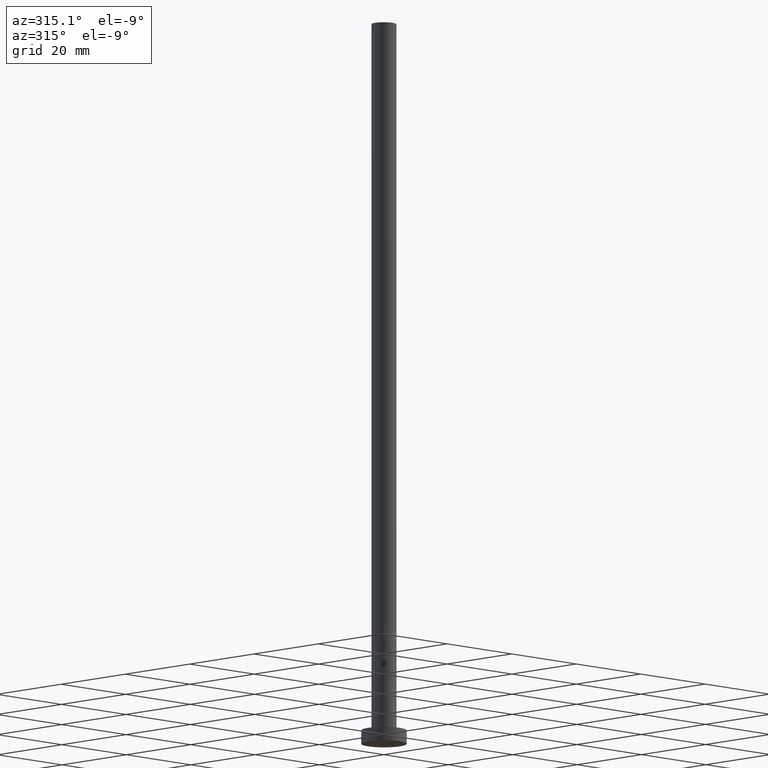
[diagram: clean part render]
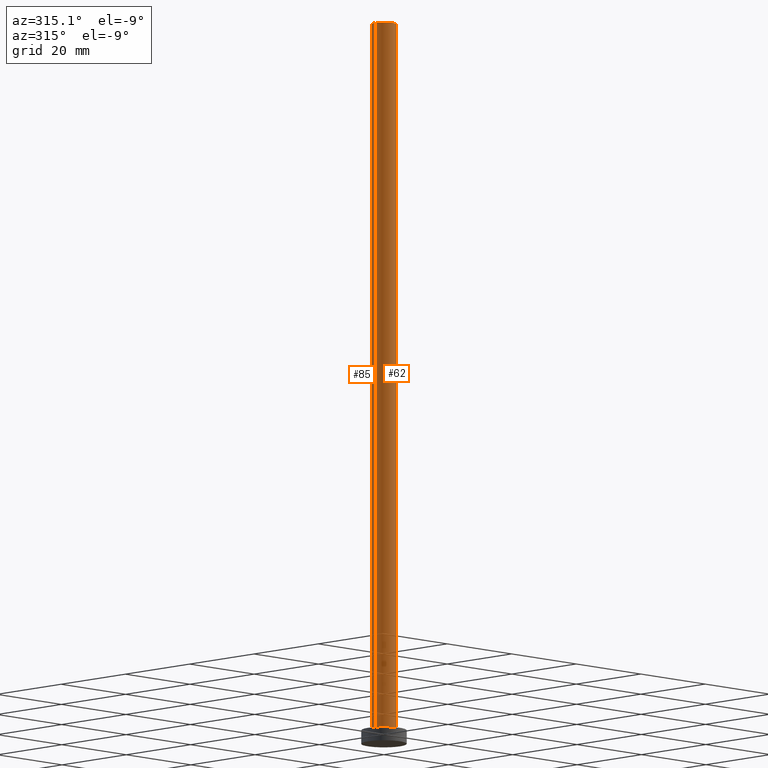
[diagram: same view with one multi-face feature highlighted, each face labeled with its STEP entity id]
A machine part, auxiliary view. The highlighted faces form ONE feature: a constant-radius fillet chain: 2 tangent blend faces with common blend radius 2.75 mm. The faces share edges in the B-rep.
Their STEP definitions:
[1] entity #62 (Cylinder):
#2 = CARTESIAN_POINT ( 'NONE',  ( -2.750000000000000000, 0.000000000000000000, 160.0000000000000000 ) ) ;
#6 = EDGE_CURVE ( 'NONE', #55, #209, #50, .T. ) ;
#16 = CARTESIAN_POINT ( 'NONE',  ( 0.000000000000000000, 0.000000000000000000, 3.000000000000000000 ) ) ;
#18 = VECTOR ( 'NONE', #217, 1000.000000000000000 ) ;
#19 = CARTESIAN_POINT ( 'NONE',  ( 2.750000000000000000, 3.367778697655221012E-16, 160.0000000000000000 ) ) ;
#22 = CARTESIAN_POINT ( 'NONE',  ( 0.000000000000000000, 0.000000000000000000, 160.0000000000000000 ) ) ;
#23 = CARTESIAN_POINT ( 'NONE',  ( 2.750000000000000000, 3.367778697655221012E-16, 160.0000000000000000 ) ) ;
#35 = VERTEX_POINT ( 'NONE', #101 ) ;
#38 = LINE ( 'NONE', #19, #57 ) ;
#41 = DIRECTION ( 'NONE',  ( -1.000000000000000000, 0.000000000000000000, 0.000000000000000000 ) ) ;
#43 = DIRECTION ( 'NONE',  ( -0.000000000000000000, -0.000000000000000000, -1.000000000000000000 ) ) ;
#50 = CIRCLE ( 'NONE', #167, 2.750000000000000000 ) ;
#55 = VERTEX_POINT ( 'NONE', #195 ) ;
#57 = VECTOR ( 'NONE', #154, 1000.000000000000000 ) ;
#62 = ADVANCED_FACE ( 'NONE', ( #242 ), #238, .T. ) ;
#63 = DIRECTION ( 'NONE',  ( 0.000000000000000000, 0.000000000000000000, 1.000000000000000000 ) ) ;
#78 = ORIENTED_EDGE ( 'NONE', *, *, #6, .T. ) ;
#81 = EDGE_LOOP ( 'NONE', ( #232, #146, #205, #78 ) ) ;
#95 = VERTEX_POINT ( 'NONE', #23 ) ;
#101 = CARTESIAN_POINT ( 'NONE',  ( -2.750000000000000000, 0.000000000000000000, 160.0000000000000000 ) ) ;
#110 = DIRECTION ( 'NONE',  ( 0.000000000000000000, 0.000000000000000000, 1.000000000000000000 ) ) ;
#136 = CIRCLE ( 'NONE', #145, 2.750000000000000000 ) ;
#142 = CARTESIAN_POINT ( 'NONE',  ( 2.750000000000000000, 3.367778697655221012E-16, 3.000000000000000000 ) ) ;
#144 = DIRECTION ( 'NONE',  ( 1.000000000000000000, 0.000000000000000000, 0.000000000000000000 ) ) ;
#145 = AXIS2_PLACEMENT_3D ( 'NONE', #247, #110, #144 ) ;
#146 = ORIENTED_EDGE ( 'NONE', *, *, #194, .F. ) ;
#148 = EDGE_CURVE ( 'NONE', #35, #55, #237, .T. ) ;
#154 = DIRECTION ( 'NONE',  ( -0.000000000000000000, -0.000000000000000000, -1.000000000000000000 ) ) ;
#158 = EDGE_CURVE ( 'NONE', #95, #209, #38, .T. ) ;
#167 = AXIS2_PLACEMENT_3D ( 'NONE', #16, #63, #191 ) ;
#191 = DIRECTION ( 'NONE',  ( 1.000000000000000000, 0.000000000000000000, 0.000000000000000000 ) ) ;
#194 = EDGE_CURVE ( 'NONE', #35, #95, #136, .T. ) ;
#195 = CARTESIAN_POINT ( 'NONE',  ( -2.750000000000000000, 0.000000000000000000, 3.000000000000000000 ) ) ;
#205 = ORIENTED_EDGE ( 'NONE', *, *, #148, .T. ) ;
#209 = VERTEX_POINT ( 'NONE', #142 ) ;
#217 = DIRECTION ( 'NONE',  ( -0.000000000000000000, -0.000000000000000000, -1.000000000000000000 ) ) ;
#232 = ORIENTED_EDGE ( 'NONE', *, *, #158, .F. ) ;
#233 = AXIS2_PLACEMENT_3D ( 'NONE', #22, #43, #41 ) ;
#237 = LINE ( 'NONE', #2, #18 ) ;
#238 = CYLINDRICAL_SURFACE ( 'NONE', #233, 2.750000000000000000 ) ;
#242 = FACE_OUTER_BOUND ( 'NONE', #81, .T. ) ;
#247 = CARTESIAN_POINT ( 'NONE',  ( 0.000000000000000000, 0.000000000000000000, 160.0000000000000000 ) ) ;
[2] entity #85 (Cylinder):
#2 = CARTESIAN_POINT ( 'NONE',  ( -2.750000000000000000, 0.000000000000000000, 160.0000000000000000 ) ) ;
#18 = VECTOR ( 'NONE', #217, 1000.000000000000000 ) ;
#19 = CARTESIAN_POINT ( 'NONE',  ( 2.750000000000000000, 3.367778697655221012E-16, 160.0000000000000000 ) ) ;
#23 = CARTESIAN_POINT ( 'NONE',  ( 2.750000000000000000, 3.367778697655221012E-16, 160.0000000000000000 ) ) ;
#35 = VERTEX_POINT ( 'NONE', #101 ) ;
#38 = LINE ( 'NONE', #19, #57 ) ;
#40 = DIRECTION ( 'NONE',  ( -1.000000000000000000, 0.000000000000000000, 0.000000000000000000 ) ) ;
#54 = EDGE_CURVE ( 'NONE', #209, #55, #69, .T. ) ;
#55 = VERTEX_POINT ( 'NONE', #195 ) ;
#57 = VECTOR ( 'NONE', #154, 1000.000000000000000 ) ;
#59 = DIRECTION ( 'NONE',  ( 0.000000000000000000, 0.000000000000000000, 1.000000000000000000 ) ) ;
#69 = CIRCLE ( 'NONE', #196, 2.750000000000000000 ) ;
#82 = CARTESIAN_POINT ( 'NONE',  ( 0.000000000000000000, 0.000000000000000000, 160.0000000000000000 ) ) ;
#85 = ADVANCED_FACE ( 'NONE', ( #102 ), #192, .T. ) ;
#95 = VERTEX_POINT ( 'NONE', #23 ) ;
#97 = EDGE_LOOP ( 'NONE', ( #231, #235, #254, #151 ) ) ;
#101 = CARTESIAN_POINT ( 'NONE',  ( -2.750000000000000000, 0.000000000000000000, 160.0000000000000000 ) ) ;
#102 = FACE_OUTER_BOUND ( 'NONE', #97, .T. ) ;
#104 = DIRECTION ( 'NONE',  ( 0.000000000000000000, 0.000000000000000000, 1.000000000000000000 ) ) ;
#116 = EDGE_CURVE ( 'NONE', #95, #35, #204, .T. ) ;
#142 = CARTESIAN_POINT ( 'NONE',  ( 2.750000000000000000, 3.367778697655221012E-16, 3.000000000000000000 ) ) ;
#148 = EDGE_CURVE ( 'NONE', #35, #55, #237, .T. ) ;
#149 = AXIS2_PLACEMENT_3D ( 'NONE', #82, #220, #40 ) ;
#151 = ORIENTED_EDGE ( 'NONE', *, *, #148, .F. ) ;
#152 = CARTESIAN_POINT ( 'NONE',  ( 0.000000000000000000, 0.000000000000000000, 160.0000000000000000 ) ) ;
#154 = DIRECTION ( 'NONE',  ( -0.000000000000000000, -0.000000000000000000, -1.000000000000000000 ) ) ;
#158 = EDGE_CURVE ( 'NONE', #95, #209, #38, .T. ) ;
#162 = AXIS2_PLACEMENT_3D ( 'NONE', #152, #59, #174 ) ;
#174 = DIRECTION ( 'NONE',  ( 1.000000000000000000, 0.000000000000000000, 0.000000000000000000 ) ) ;
#192 = CYLINDRICAL_SURFACE ( 'NONE', #149, 2.750000000000000000 ) ;
#195 = CARTESIAN_POINT ( 'NONE',  ( -2.750000000000000000, 0.000000000000000000, 3.000000000000000000 ) ) ;
#196 = AXIS2_PLACEMENT_3D ( 'NONE', #221, #104, #241 ) ;
#204 = CIRCLE ( 'NONE', #162, 2.750000000000000000 ) ;
#209 = VERTEX_POINT ( 'NONE', #142 ) ;
#217 = DIRECTION ( 'NONE',  ( -0.000000000000000000, -0.000000000000000000, -1.000000000000000000 ) ) ;
#220 = DIRECTION ( 'NONE',  ( -0.000000000000000000, -0.000000000000000000, -1.000000000000000000 ) ) ;
#221 = CARTESIAN_POINT ( 'NONE',  ( 0.000000000000000000, 0.000000000000000000, 3.000000000000000000 ) ) ;
#231 = ORIENTED_EDGE ( 'NONE', *, *, #116, .F. ) ;
#235 = ORIENTED_EDGE ( 'NONE', *, *, #158, .T. ) ;
#237 = LINE ( 'NONE', #2, #18 ) ;
#241 = DIRECTION ( 'NONE',  ( 1.000000000000000000, 0.000000000000000000, 0.000000000000000000 ) ) ;
#254 = ORIENTED_EDGE ( 'NONE', *, *, #54, .T. ) ;